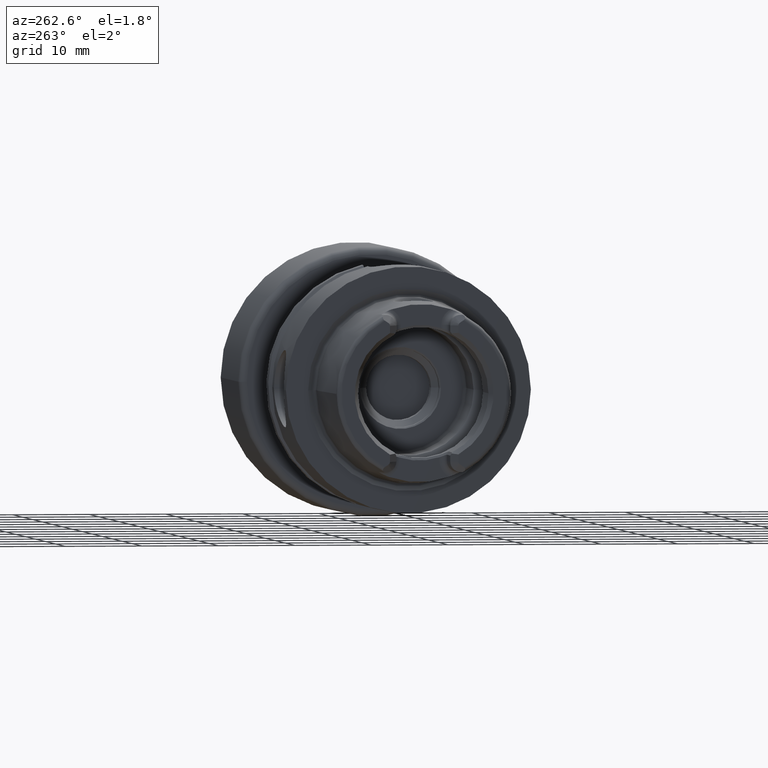
[diagram: clean part render]
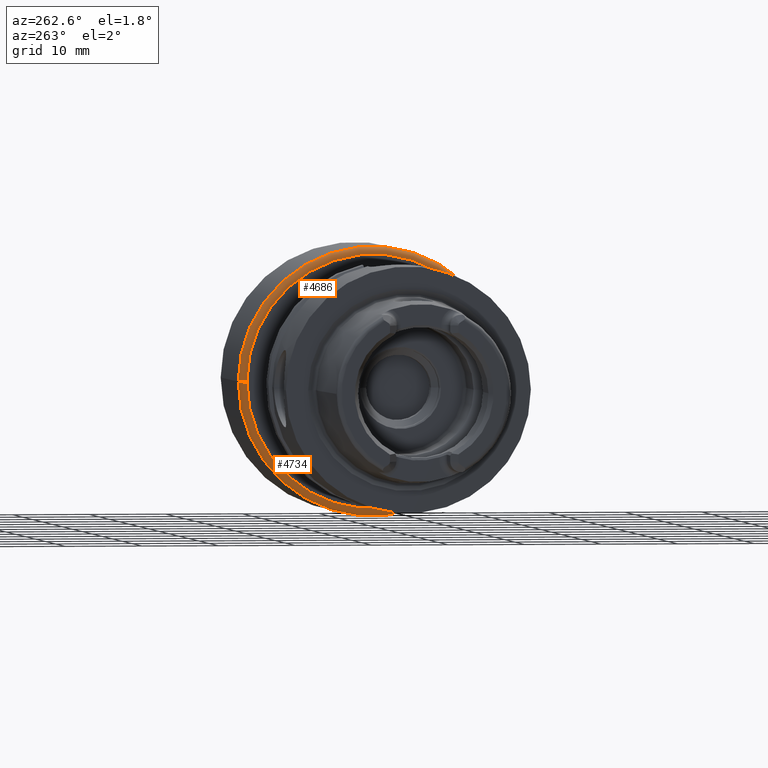
[diagram: same view with one multi-face feature highlighted, each face labeled with its STEP entity id]
A machine part, auxiliary view. The highlighted faces form ONE feature: a constant-radius fillet chain: 2 tangent blend faces with common blend radius 1 mm. The faces share edges in the B-rep.
Their STEP definitions:
[1] entity #4734 (Torus):
#1359=CARTESIAN_POINT('',(3.545E1,0.E0,0.E0));
#1360=DIRECTION('',(1.E0,0.E0,0.E0));
#1361=DIRECTION('',(0.E0,-1.E0,0.E0));
#1362=AXIS2_PLACEMENT_3D('',#1359,#1360,#1361);
#1384=CARTESIAN_POINT('',(3.645E1,1.65E1,-1.639341440374E-12));
#1385=DIRECTION('',(0.E0,9.935368500136E-14,1.E0));
#1386=DIRECTION('',(0.E0,1.E0,-9.935368500136E-14));
#1387=AXIS2_PLACEMENT_3D('',#1384,#1385,#1386);
#1423=CARTESIAN_POINT('',(3.645E1,0.E0,0.E0));
#1424=DIRECTION('',(1.E0,0.E0,0.E0));
#1425=DIRECTION('',(0.E0,-1.E0,0.E0));
#1426=AXIS2_PLACEMENT_3D('',#1423,#1424,#1425);
#1469=CARTESIAN_POINT('',(3.645E1,-1.65E1,1.637315283354E-12));
#1470=DIRECTION('',(0.E0,-9.923138699630E-14,-1.E0));
#1471=DIRECTION('',(0.E0,-1.E0,9.923138699630E-14));
#1472=AXIS2_PLACEMENT_3D('',#1469,#1470,#1471);
#3379=CARTESIAN_POINT('',(3.645E1,1.75E1,0.E0));
#3380=CARTESIAN_POINT('',(3.645E1,-1.75E1,0.E0));
#3381=VERTEX_POINT('',#3379);
#3382=VERTEX_POINT('',#3380);
#3383=CARTESIAN_POINT('',(3.545E1,-1.65E1,1.637315283354E-12));
#3384=VERTEX_POINT('',#3383);
#3385=CARTESIAN_POINT('',(3.545E1,1.65E1,-1.639341440374E-12));
#3386=VERTEX_POINT('',#3385);
#4723=CARTESIAN_POINT('',(3.645E1,0.E0,0.E0));
#4724=DIRECTION('',(1.E0,0.E0,0.E0));
#4725=DIRECTION('',(0.E0,-9.999893958221E-1,4.605240864523E-3));
#4726=AXIS2_PLACEMENT_3D('',#4723,#4724,#4725);
#4727=TOROIDAL_SURFACE('',#4726,1.65E1,1.E0);
#4728=ORIENTED_EDGE('',*,*,#4711,.T.);
#4729=ORIENTED_EDGE('',*,*,#4682,.T.);
#4730=ORIENTED_EDGE('',*,*,#4636,.F.);
#4731=ORIENTED_EDGE('',*,*,#4679,.F.);
#4732=EDGE_LOOP('',(#4728,#4729,#4730,#4731));
#4733=FACE_OUTER_BOUND('',#4732,.F.);
#4734=ADVANCED_FACE('',(#4733),#4727,.T.);
#1363=CIRCLE('',#1362,1.65E1);
#1388=CIRCLE('',#1387,1.E0);
#1427=CIRCLE('',#1426,1.75E1);
#1473=CIRCLE('',#1472,1.E0);
#4636=EDGE_CURVE('',#3384,#3386,#1363,.T.);
#4679=EDGE_CURVE('',#3382,#3384,#1473,.T.);
#4682=EDGE_CURVE('',#3381,#3386,#1388,.T.);
#4711=EDGE_CURVE('',#3382,#3381,#1427,.T.);
[2] entity #4686 (Torus):
#1354=CARTESIAN_POINT('',(3.545E1,0.E0,0.E0));
#1355=DIRECTION('',(1.E0,0.E0,0.E0));
#1356=DIRECTION('',(0.E0,1.E0,0.E0));
#1357=AXIS2_PLACEMENT_3D('',#1354,#1355,#1356);
#1384=CARTESIAN_POINT('',(3.645E1,1.65E1,-1.639341440374E-12));
#1385=DIRECTION('',(0.E0,9.935368500136E-14,1.E0));
#1386=DIRECTION('',(0.E0,1.E0,-9.935368500136E-14));
#1387=AXIS2_PLACEMENT_3D('',#1384,#1385,#1386);
#1389=CARTESIAN_POINT('',(3.645E1,0.E0,0.E0));
#1390=DIRECTION('',(1.E0,0.E0,0.E0));
#1391=DIRECTION('',(0.E0,1.E0,0.E0));
#1392=AXIS2_PLACEMENT_3D('',#1389,#1390,#1391);
#1469=CARTESIAN_POINT('',(3.645E1,-1.65E1,1.637315283354E-12));
#1470=DIRECTION('',(0.E0,-9.923138699630E-14,-1.E0));
#1471=DIRECTION('',(0.E0,-1.E0,9.923138699630E-14));
#1472=AXIS2_PLACEMENT_3D('',#1469,#1470,#1471);
#3379=CARTESIAN_POINT('',(3.645E1,1.75E1,0.E0));
#3380=CARTESIAN_POINT('',(3.645E1,-1.75E1,0.E0));
#3381=VERTEX_POINT('',#3379);
#3382=VERTEX_POINT('',#3380);
#3383=CARTESIAN_POINT('',(3.545E1,-1.65E1,1.637315283354E-12));
#3384=VERTEX_POINT('',#3383);
#3385=CARTESIAN_POINT('',(3.545E1,1.65E1,-1.639341440374E-12));
#3386=VERTEX_POINT('',#3385);
#4672=CARTESIAN_POINT('',(3.645E1,0.E0,0.E0));
#4673=DIRECTION('',(1.E0,0.E0,0.E0));
#4674=DIRECTION('',(0.E0,9.999893958221E-1,-4.605240864523E-3));
#4675=AXIS2_PLACEMENT_3D('',#4672,#4673,#4674);
#4676=TOROIDAL_SURFACE('',#4675,1.65E1,1.E0);
#4678=ORIENTED_EDGE('',*,*,#4677,.T.);
#4680=ORIENTED_EDGE('',*,*,#4679,.T.);
#4681=ORIENTED_EDGE('',*,*,#4634,.F.);
#4683=ORIENTED_EDGE('',*,*,#4682,.F.);
#4684=EDGE_LOOP('',(#4678,#4680,#4681,#4683));
#4685=FACE_OUTER_BOUND('',#4684,.F.);
#4686=ADVANCED_FACE('',(#4685),#4676,.T.);
#1358=CIRCLE('',#1357,1.65E1);
#1388=CIRCLE('',#1387,1.E0);
#1393=CIRCLE('',#1392,1.75E1);
#1473=CIRCLE('',#1472,1.E0);
#4634=EDGE_CURVE('',#3386,#3384,#1358,.T.);
#4677=EDGE_CURVE('',#3381,#3382,#1393,.T.);
#4679=EDGE_CURVE('',#3382,#3384,#1473,.T.);
#4682=EDGE_CURVE('',#3381,#3386,#1388,.T.);